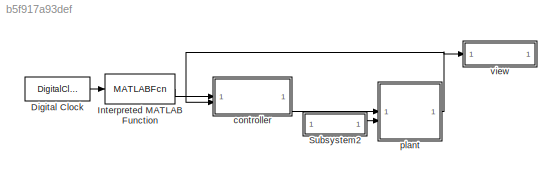
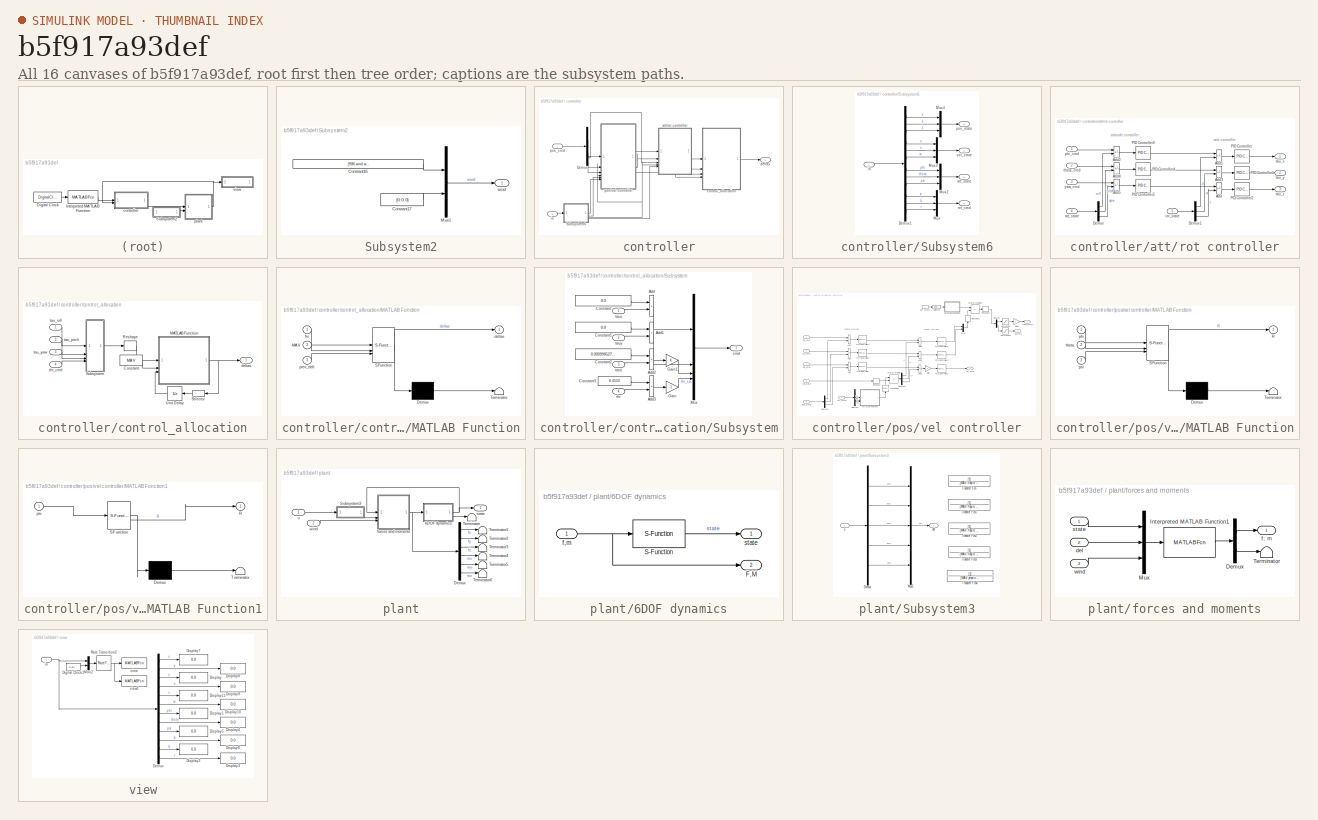
[diagram: thumbnail index - all 16 canvases of the model, root first then tree order]
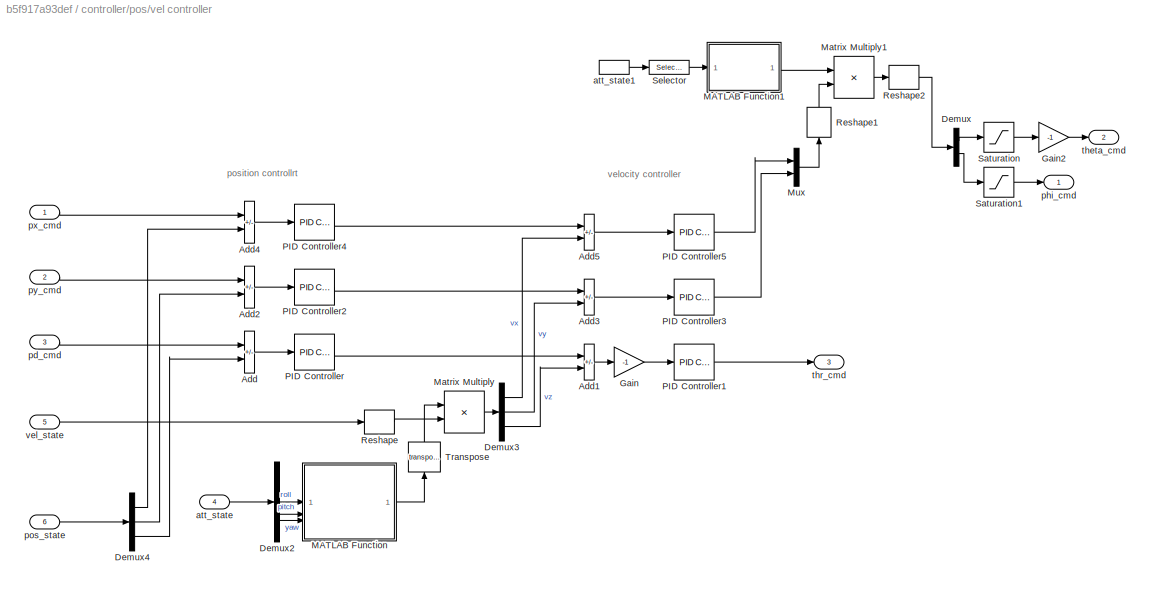
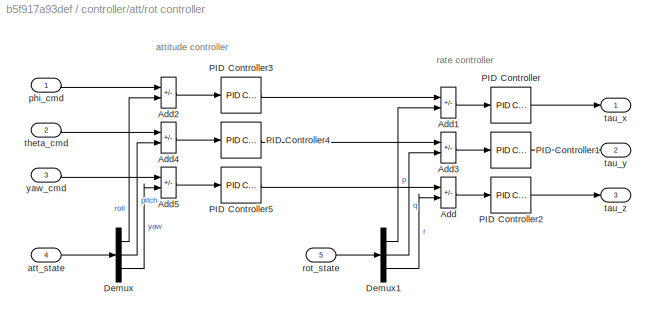
MODEL slx_b5f917a93def
KIND model
CONFIG AbsTol = auto
CONFIG EnableMultiTasking = off
CONFIG FixedStep = 0.001
CONFIG MaxStep = auto
CONFIG MinStep = auto
CONFIG RelTol = 1e-3
CONFIG SampleTimeConstraint = Unconstrained
CONFIG SolverName = FixedStepAuto
CONFIG StartTime = 0.0
CONFIG StopTime = inf
BLOCK [DigitalClock] Digital Clock
  SampleTime = 0.001
BLOCK [MATLABFcn] Interpreted MATLAB Function
  MATLABFcn = position_rhombus(u)
  OutputDimensions = 4
BLOCK [SubSystem] Subsystem2
BLOCK [Constant] Subsystem2/Constant16
  Value = [SIM.wind.wn_s; SIM.wind.we_s; SIM.wind.wd_s]
BLOCK [Constant] Subsystem2/Constant17
  Value = [0; 0; 0]
BLOCK [Mux] Subsystem2/Mux1
  DisplayOption = bar
  Inputs = 2
BLOCK [Outport] Subsystem2/wind
BLOCK [SubSystem] controller
BLOCK [Demux] controller/Demux
BLOCK [SubSystem] controller/Subsystem6
BLOCK [Demux] controller/Subsystem6/Demux1
  Outputs = 12
BLOCK [Mux] controller/Subsystem6/Mux
  DisplayOption = bar
  Inputs = 3
BLOCK [Mux] controller/Subsystem6/Mux2
  DisplayOption = bar
  Inputs = 3
BLOCK [Mux] controller/Subsystem6/Mux3
  DisplayOption = bar
  Inputs = 3
BLOCK [Mux] controller/Subsystem6/Mux4
  DisplayOption = bar
  Inputs = 3
BLOCK [Outport] controller/Subsystem6/att_state
  Port = 3
BLOCK [Inport] controller/Subsystem6/in
BLOCK [Outport] controller/Subsystem6/pos_state
BLOCK [Outport] controller/Subsystem6/rot_cmd
  Port = 4
BLOCK [Outport] controller/Subsystem6/vel_state
  Port = 2
BLOCK [SubSystem] controller/att//rot controller
BLOCK [Sum] controller/att//rot controller/Add
  IconShape = rectangular
  Inputs = +-
BLOCK [Sum] controller/att//rot controller/Add1
  IconShape = rectangular
  Inputs = +-
BLOCK [Sum] controller/att//rot controller/Add2
  IconShape = rectangular
  Inputs = +-
BLOCK [Sum] controller/att//rot controller/Add3
  IconShape = rectangular
  Inputs = +-
BLOCK [Sum] controller/att//rot controller/Add4
  IconShape = rectangular
  Inputs = +-
BLOCK [Sum] controller/att//rot controller/Add5
  IconShape = rectangular
  Inputs = +-
BLOCK [Demux] controller/att//rot controller/Demux
  Outputs = 3
BLOCK [Demux] controller/att//rot controller/Demux1
  Outputs = 3
BLOCK [Reference] controller/att//rot controller/PID Controller  REF=slpidlib/PID Controller
  LibrarySourceBlock = simulink/Continuous/PID Controller
  SourceBlock = slpidlib/PID Controller
  SourceType = PID 1dof
BLOCK [Reference] controller/att//rot controller/PID Controller1  REF=slpidlib/PID Controller
  LibrarySourceBlock = simulink/Continuous/PID Controller
  SourceBlock = slpidlib/PID Controller
  SourceType = PID 1dof
BLOCK [Reference] controller/att//rot controller/PID Controller2  REF=slpidlib/PID Controller
  LibrarySourceBlock = simulink/Continuous/PID Controller
  SourceBlock = slpidlib/PID Controller
  SourceType = PID 1dof
BLOCK [Reference] controller/att//rot controller/PID Controller3  REF=slpidlib/PID Controller
  LibrarySourceBlock = simulink/Continuous/PID Controller
  SourceBlock = slpidlib/PID Controller
  SourceType = PID 1dof
BLOCK [Reference] controller/att//rot controller/PID Controller4  REF=slpidlib/PID Controller
  LibrarySourceBlock = simulink/Continuous/PID Controller
  SourceBlock = slpidlib/PID Controller
  SourceType = PID 1dof
BLOCK [Reference] controller/att//rot controller/PID Controller5  REF=slpidlib/PID Controller
  LibrarySourceBlock = simulink/Continuous/PID Controller
  SourceBlock = slpidlib/PID Controller
  SourceType = PID 1dof
BLOCK [Inport] controller/att//rot controller/att_state
  Port = 4
BLOCK [Inport] controller/att//rot controller/phi_cmd
BLOCK [Inport] controller/att//rot controller/rot_state
  Port = 5
BLOCK [Outport] controller/att//rot controller/tau_x
BLOCK [Outport] controller/att//rot controller/tau_y
  Port = 2
BLOCK [Outport] controller/att//rot controller/tau_z
  Port = 3
BLOCK [Inport] controller/att//rot controller/theta_cmd
  Port = 2
BLOCK [Inport] controller/att//rot controller/yaw_cmd
  Port = 3
BLOCK [SubSystem] controller/control_allocation
BLOCK [Constant] controller/control_allocation/Constant
  OutDataTypeStr = Bus: MAV_Bus
  SampleTime = 0.1
  Value = MAV
BLOCK [SubSystem] controller/control_allocation/MATLAB Function
  ErrorFcn = Stateflow.Translate.translate
  PermitHierarchicalResolution = ExplicitOnly
  SFBlockType = MATLAB Function
  TreatAsAtomicUnit = on
BLOCK [Demux] controller/control_allocation/MATLAB Function/ Demux 
  Outputs = 1
BLOCK [S-Function] controller/control_allocation/MATLAB Function/ SFunction 
  EnableBusSupport = on
  FunctionName = sf_sfun
  PortCounts = [3 2]
  SFcnIsStateOwnerBlock = off
  SFunctionDeploymentMode = off
  Tag = Stateflow S-Function 2
BLOCK [Terminator] controller/control_allocation/MATLAB Function/ Terminator 
BLOCK [Inport] controller/control_allocation/MATLAB Function/MAV
  Port = 2
BLOCK [Outport] controller/control_allocation/MATLAB Function/deltas
BLOCK [Inport] controller/control_allocation/MATLAB Function/fm
BLOCK [Inport] controller/control_allocation/MATLAB Function/prev_delt
  Port = 3
BLOCK [Reshape] controller/control_allocation/Reshape
  OutputDimensionality = Column vector (2-D)
BLOCK [Selector] controller/control_allocation/Selector
  IndexOptions = Index vector (dialog)
  Indices = [5]
  InputPortWidth = 5
  OutputSizes = 1
BLOCK [SubSystem] controller/control_allocation/Subsystem
BLOCK [Sum] controller/control_allocation/Subsystem/Add
  IconShape = rectangular
BLOCK [Sum] controller/control_allocation/Subsystem/Add1
  IconShape = rectangular
BLOCK [Sum] controller/control_allocation/Subsystem/Add2
  IconShape = rectangular
BLOCK [Sum] controller/control_allocation/Subsystem/Add3
  IconShape = rectangular
BLOCK [Constant] controller/control_allocation/Subsystem/Constant
  Value = 0.0
BLOCK [Constant] controller/control_allocation/Subsystem/Constant1
  Value = 0.0
BLOCK [Constant] controller/control_allocation/Subsystem/Constant2
  Value = 0.000998527156824563
BLOCK [Constant] controller/control_allocation/Subsystem/Constant3
  Value = 8.4550
BLOCK [Gain] controller/control_allocation/Subsystem/Gain
  Gain = -1
BLOCK [Gain] controller/control_allocation/Subsystem/Gain1
BLOCK [Mux] controller/control_allocation/Subsystem/Mux
  DisplayOption = bar
BLOCK [Outport] controller/control_allocation/Subsystem/cmd
BLOCK [Inport] controller/control_allocation/Subsystem/taux
BLOCK [Inport] controller/control_allocation/Subsystem/tauy
  Port = 2
BLOCK [Inport] controller/control_allocation/Subsystem/tauz
  Port = 3
BLOCK [Inport] controller/control_allocation/Subsystem/thr
  Port = 4
BLOCK [UnitDelay] controller/control_allocation/Unit Delay
  HasFrameUpgradeWarning = on
  InitialCondition = 0.7245
  SampleTime = -1
BLOCK [Outport] controller/control_allocation/deltas
BLOCK [Inport] controller/control_allocation/tau_pitch
  Port = 2
BLOCK [Inport] controller/control_allocation/tau_roll
BLOCK [Inport] controller/control_allocation/tau_yaw
  Port = 3
BLOCK [Inport] controller/control_allocation/thr_cmd
  Port = 4
BLOCK [Outport] controller/deltas
  NameLocation = left
BLOCK [Inport] controller/in
  Port = 2
BLOCK [SubSystem] controller/pos//vel controller
BLOCK [Sum] controller/pos//vel controller/Add
  IconShape = rectangular
  Inputs = +-
BLOCK [Sum] controller/pos//vel controller/Add1
  IconShape = rectangular
  Inputs = +-
BLOCK [Sum] controller/pos//vel controller/Add2
  IconShape = rectangular
  Inputs = +-
BLOCK [Sum] controller/pos//vel controller/Add3
  IconShape = rectangular
  Inputs = +-
BLOCK [Sum] controller/pos//vel controller/Add4
  IconShape = rectangular
  Inputs = +-
BLOCK [Sum] controller/pos//vel controller/Add5
  IconShape = rectangular
  Inputs = +-
BLOCK [Demux] controller/pos//vel controller/Demux
  Outputs = 2
BLOCK [Demux] controller/pos//vel controller/Demux2
  Outputs = 3
BLOCK [Demux] controller/pos//vel controller/Demux3
  Outputs = 3
BLOCK [Demux] controller/pos//vel controller/Demux4
  Outputs = 3
BLOCK [Gain] controller/pos//vel controller/Gain
  Gain = -1
BLOCK [Gain] controller/pos//vel controller/Gain2
  Gain = -1
BLOCK [SubSystem] controller/pos//vel controller/MATLAB Function
  ErrorFcn = Stateflow.Translate.translate
  PermitHierarchicalResolution = ExplicitOnly
  SFBlockType = MATLAB Function
  TreatAsAtomicUnit = on
BLOCK [Demux] controller/pos//vel controller/MATLAB Function/ Demux 
  Outputs = 1
BLOCK [S-Function] controller/pos//vel controller/MATLAB Function/ SFunction 
  EnableBusSupport = on
  FunctionName = sf_sfun
  PortCounts = [3 2]
  SFcnIsStateOwnerBlock = off
  SFunctionDeploymentMode = off
  Tag = Stateflow S-Function 3
BLOCK [Terminator] controller/pos//vel controller/MATLAB Function/ Terminator 
BLOCK [Outport] controller/pos//vel controller/MATLAB Function/R
BLOCK [Inport] controller/pos//vel controller/MATLAB Function/phi
BLOCK [Inport] controller/pos//vel controller/MATLAB Function/psi
  Port = 3
BLOCK [Inport] controller/pos//vel controller/MATLAB Function/theta
  Port = 2
BLOCK [SubSystem] controller/pos//vel controller/MATLAB Function1
  ErrorFcn = Stateflow.Translate.translate
  PermitHierarchicalResolution = ExplicitOnly
  SFBlockType = MATLAB Function
  TreatAsAtomicUnit = on
BLOCK [Demux] controller/pos//vel controller/MATLAB Function1/ Demux 
  Outputs = 1
BLOCK [S-Function] controller/pos//vel controller/MATLAB Function1/ SFunction 
  EnableBusSupport = on
  FunctionName = sf_sfun
  PortCounts = [1 2]
  SFcnIsStateOwnerBlock = off
  SFunctionDeploymentMode = off
  Tag = Stateflow S-Function 1
BLOCK [Terminator] controller/pos//vel controller/MATLAB Function1/ Terminator 
BLOCK [Outport] controller/pos//vel controller/MATLAB Function1/R
BLOCK [Inport] controller/pos//vel controller/MATLAB Function1/psi
BLOCK [Product] controller/pos//vel controller/Matrix Multiply
  Multiplication = Matrix(*)
BLOCK [Product] controller/pos//vel controller/Matrix Multiply1
  Multiplication = Matrix(*)
BLOCK [Mux] controller/pos//vel controller/Mux
  DisplayOption = bar
  Inputs = 2
BLOCK [Reference] controller/pos//vel controller/PID Controller  REF=slpidlib/PID Controller
  LibrarySourceBlock = simulink/Continuous/PID Controller
  SourceBlock = slpidlib/PID Controller
  SourceType = PID 1dof
BLOCK [Reference] controller/pos//vel controller/PID Controller1  REF=slpidlib/PID Controller
  LibrarySourceBlock = simulink/Continuous/PID Controller
  SourceBlock = slpidlib/PID Controller
  SourceType = PID 1dof
BLOCK [Reference] controller/pos//vel controller/PID Controller2  REF=slpidlib/PID Controller
  LibrarySourceBlock = simulink/Continuous/PID Controller
  SourceBlock = slpidlib/PID Controller
  SourceType = PID 1dof
BLOCK [Reference] controller/pos//vel controller/PID Controller3  REF=slpidlib/PID Controller
  LibrarySourceBlock = simulink/Continuous/PID Controller
  SourceBlock = slpidlib/PID Controller
  SourceType = PID 1dof
BLOCK [Reference] controller/pos//vel controller/PID Controller4  REF=slpidlib/PID Controller
  LibrarySourceBlock = simulink/Continuous/PID Controller
  SourceBlock = slpidlib/PID Controller
  SourceType = PID 1dof
BLOCK [Reference] controller/pos//vel controller/PID Controller5  REF=slpidlib/PID Controller
  LibrarySourceBlock = simulink/Continuous/PID Controller
  SourceBlock = slpidlib/PID Controller
  SourceType = PID 1dof
BLOCK [Reshape] controller/pos//vel controller/Reshape
  OutputDimensionality = Column vector (2-D)
BLOCK [Reshape] controller/pos//vel controller/Reshape1
  NameLocation = right
  OutputDimensionality = Column vector (2-D)
BLOCK [Reshape] controller/pos//vel controller/Reshape2
  OutputDimensionality = Row vector (2-D)
BLOCK [Saturate] controller/pos//vel controller/Saturation
  LowerLimit = -deg2rad(6)
  UpperLimit = deg2rad(6)
BLOCK [Saturate] controller/pos//vel controller/Saturation1
  LowerLimit = -deg2rad(6)
  UpperLimit = deg2rad(6)
BLOCK [Selector] controller/pos//vel controller/Selector
  IndexOptions = Index vector (dialog)
  Indices = [3]
  InputPortWidth = 3
  OutputSizes = 1
BLOCK [Math] controller/pos//vel controller/Transpose
  NameLocation = right
  Operator = transpose
BLOCK [Inport] controller/pos//vel controller/att_state
  Port = 4
BLOCK [InportShadow] controller/pos//vel controller/att_state1
  Port = 4
BLOCK [Inport] controller/pos//vel controller/pd_cmd
  Port = 3
BLOCK [Outport] controller/pos//vel controller/phi_cmd
BLOCK [Inport] controller/pos//vel controller/pos_state
  Port = 6
BLOCK [Inport] controller/pos//vel controller/px_cmd
BLOCK [Inport] controller/pos//vel controller/py_cmd
  Port = 2
BLOCK [Outport] controller/pos//vel controller/theta_cmd
  Port = 2
BLOCK [Outport] controller/pos//vel controller/thr_cmd
  Port = 3
BLOCK [Inport] controller/pos//vel controller/vel_state
  Port = 5
BLOCK [Inport] controller/pos_cmd
BLOCK [SubSystem] plant
BLOCK [SubSystem] plant/6DOF dynamics
BLOCK [Outport] plant/6DOF dynamics/F,M
  Port = 2
BLOCK [S-Function] plant/6DOF dynamics/S-Function
  EnableBusSupport = off
  FunctionName = UAVdynamics
  Parameters = MAV
  SFcnIsStateOwnerBlock = off
  SFunctionDeploymentMode = off
BLOCK [Inport] plant/6DOF dynamics/f,m
BLOCK [Outport] plant/6DOF dynamics/state
BLOCK [Demux] plant/Demux
  Outputs = 6
BLOCK [SubSystem] plant/Subsystem3
BLOCK [Demux] plant/Subsystem3/Demux
  Outputs = 5
BLOCK [Mux] plant/Subsystem3/Mux3
  DisplayOption = bar
  Inputs = 5
BLOCK [TransferFcn] plant/Subsystem3/Transfer Fcn
  Commented = on
  Denominator = [MAV.flap.tc 1]
BLOCK [TransferFcn] plant/Subsystem3/Transfer Fcn1
  Commented = on
  Denominator = [MAV.flap.tc 1]
BLOCK [TransferFcn] plant/Subsystem3/Transfer Fcn2
  Commented = on
  Denominator = [MAV.flap.tc 1]
BLOCK [TransferFcn] plant/Subsystem3/Transfer Fcn3
  Commented = on
  Denominator = [MAV.flap.tc 1]
BLOCK [TransferFcn] plant/Subsystem3/Transfer Fcn4
  Commented = on
  Denominator = [MAV.prop.tc 1]
BLOCK [Outport] plant/Subsystem3/del
BLOCK [Inport] plant/Subsystem3/u
BLOCK [Terminator] plant/Terminator
BLOCK [Terminator] plant/Terminator1
BLOCK [Terminator] plant/Terminator2
BLOCK [Terminator] plant/Terminator3
BLOCK [Terminator] plant/Terminator4
BLOCK [Terminator] plant/Terminator5
BLOCK [Terminator] plant/Terminator6
BLOCK [SubSystem] plant/forces and moments
BLOCK [Demux] plant/forces and moments/Demux
  Outputs = [6,3]
BLOCK [MATLABFcn] plant/forces and moments/Interpreted MATLAB Function1
  MATLABFcn = force_moment(u(1:12), u(13:17), u(18:23), MAV)
  OutputDimensions = 9
BLOCK [Mux] plant/forces and moments/Mux
  DisplayOption = bar
  Inputs = 3
BLOCK [Terminator] plant/forces and moments/Terminator
BLOCK [Inport] plant/forces and moments/del
  Port = 2
BLOCK [Outport] plant/forces and moments/f; m
BLOCK [Inport] plant/forces and moments/state
BLOCK [Inport] plant/forces and moments/wind
  Port = 3
BLOCK [Outport] plant/state
BLOCK [Inport] plant/u
BLOCK [Inport] plant/wind
  Port = 2
BLOCK [SubSystem] view
BLOCK [Demux] view/Demux
  Outputs = 12
BLOCK [DigitalClock] view/Digital Clock1
  SampleTime = 0.005
BLOCK [Display] view/Display
  Decimation = 1
BLOCK [Display] view/Display1
  Decimation = 1
BLOCK [Display] view/Display10
  Decimation = 1
BLOCK [Display] view/Display11
  Decimation = 1
BLOCK [Display] view/Display2
  Decimation = 1
BLOCK [Display] view/Display3
  Decimation = 1
BLOCK [Display] view/Display4
  Decimation = 1
BLOCK [Display] view/Display5
  Decimation = 1
BLOCK [Display] view/Display6
  Decimation = 1
BLOCK [Display] view/Display7
  Decimation = 1
BLOCK [Display] view/Display8
  Decimation = 1
BLOCK [Display] view/Display9
  Decimation = 1
BLOCK [Mux] view/Mux2
  DisplayOption = bar
  Inputs = 2
BLOCK [RateTransition] view/Rate Transition2
  OutPortSampleTime = 0.1
BLOCK [Inport] view/in
BLOCK [MATLABFcn] view/view
  MATLABFcn = drawaircraft(u)
  OutputDimensions = 0
BLOCK [MATLABFcn] view/view1
  MATLABFcn = drawaircraft2(u)
  OutputDimensions = 0
ANNOTATION controller/att//rot controller: attitude controller
ANNOTATION controller/att//rot controller: rate controller
ANNOTATION controller/pos//vel controller: position controllrt
ANNOTATION controller/pos//vel controller: velocity controller
LINE Digital Clock:1 -> Interpreted MATLAB Function:1
LINE Interpreted MATLAB Function:1 -> controller:1
LINE Subsystem2/Constant16:1 -> Subsystem2/Mux1:1
LINE Subsystem2/Constant17:1 -> Subsystem2/Mux1:2
LINE Subsystem2/Mux1:1 -> Subsystem2/wind:1
LINE Subsystem2:1 -> plant:2
LINE controller/Demux:1 -> controller/pos//vel controller:1
LINE controller/Demux:2 -> controller/pos//vel controller:2
LINE controller/Demux:3 -> controller/pos//vel controller:3
LINE controller/Demux:4 -> controller/att//rot controller:3
LINE controller/Subsystem6/Demux1:1 -> controller/Subsystem6/Mux4:1
LINE controller/Subsystem6/Demux1:10 -> controller/Subsystem6/Mux:1
LINE controller/Subsystem6/Demux1:11 -> controller/Subsystem6/Mux:2
LINE controller/Subsystem6/Demux1:12 -> controller/Subsystem6/Mux:3
LINE controller/Subsystem6/Demux1:2 -> controller/Subsystem6/Mux4:2
LINE controller/Subsystem6/Demux1:3 -> controller/Subsystem6/Mux4:3
LINE controller/Subsystem6/Demux1:4 -> controller/Subsystem6/Mux3:1
LINE controller/Subsystem6/Demux1:5 -> controller/Subsystem6/Mux3:2
LINE controller/Subsystem6/Demux1:6 -> controller/Subsystem6/Mux3:3
LINE controller/Subsystem6/Demux1:7 -> controller/Subsystem6/Mux2:1
LINE controller/Subsystem6/Demux1:8 -> controller/Subsystem6/Mux2:2
LINE controller/Subsystem6/Demux1:9 -> controller/Subsystem6/Mux2:3
LINE controller/Subsystem6/Mux2:1 -> controller/Subsystem6/att_state:1
LINE controller/Subsystem6/Mux3:1 -> controller/Subsystem6/vel_state:1
LINE controller/Subsystem6/Mux4:1 -> controller/Subsystem6/pos_state:1
LINE controller/Subsystem6/Mux:1 -> controller/Subsystem6/rot_cmd:1
LINE controller/Subsystem6/in:1 -> controller/Subsystem6/Demux1:1
LINE controller/Subsystem6:1 -> controller/pos//vel controller:6
LINE controller/Subsystem6:2 -> controller/pos//vel controller:5
NET controller/Subsystem6:3 -> controller/att//rot controller:4, controller/pos//vel controller:4
LINE controller/Subsystem6:4 -> controller/att//rot controller:5
LINE controller/att//rot controller/Add1:1 -> controller/att//rot controller/PID Controller:1
LINE controller/att//rot controller/Add2:1 -> controller/att//rot controller/PID Controller3:1
LINE controller/att//rot controller/Add3:1 -> controller/att//rot controller/PID Controller1:1
LINE controller/att//rot controller/Add4:1 -> controller/att//rot controller/PID Controller4:1
LINE controller/att//rot controller/Add5:1 -> controller/att//rot controller/PID Controller5:1
LINE controller/att//rot controller/Add:1 -> controller/att//rot controller/PID Controller2:1
LINE controller/att//rot controller/Demux1:1 -> controller/att//rot controller/Add1:2
LINE controller/att//rot controller/Demux1:2 -> controller/att//rot controller/Add3:2
LINE controller/att//rot controller/Demux1:3 -> controller/att//rot controller/Add:2
LINE controller/att//rot controller/Demux:1 -> controller/att//rot controller/Add2:2
LINE controller/att//rot controller/Demux:2 -> controller/att//rot controller/Add4:2
LINE controller/att//rot controller/Demux:3 -> controller/att//rot controller/Add5:2
LINE controller/att//rot controller/PID Controller1:1 -> controller/att//rot controller/tau_y:1
LINE controller/att//rot controller/PID Controller2:1 -> controller/att//rot controller/tau_z:1
LINE controller/att//rot controller/PID Controller3:1 -> controller/att//rot controller/Add1:1
LINE controller/att//rot controller/PID Controller4:1 -> controller/att//rot controller/Add3:1
LINE controller/att//rot controller/PID Controller5:1 -> controller/att//rot controller/Add:1
LINE controller/att//rot controller/PID Controller:1 -> controller/att//rot controller/tau_x:1
LINE controller/att//rot controller/att_state:1 -> controller/att//rot controller/Demux:1
LINE controller/att//rot controller/phi_cmd:1 -> controller/att//rot controller/Add2:1
LINE controller/att//rot controller/rot_state:1 -> controller/att//rot controller/Demux1:1
LINE controller/att//rot controller/theta_cmd:1 -> controller/att//rot controller/Add4:1
LINE controller/att//rot controller/yaw_cmd:1 -> controller/att//rot controller/Add5:1
LINE controller/att//rot controller:1 -> controller/control_allocation:1
LINE controller/att//rot controller:2 -> controller/control_allocation:2
LINE controller/att//rot controller:3 -> controller/control_allocation:3
LINE controller/control_allocation/Constant:1 -> controller/control_allocation/MATLAB Function:2
NET controller/control_allocation/MATLAB Function:1 -> controller/control_allocation/Selector:1, controller/control_allocation/deltas:1
LINE controller/control_allocation/Reshape:1 -> controller/control_allocation/MATLAB Function:1
LINE controller/control_allocation/Selector:1 -> controller/control_allocation/Unit Delay:1
LINE controller/control_allocation/Subsystem/Add1:1 -> controller/control_allocation/Subsystem/Mux:2
LINE controller/control_allocation/Subsystem/Add2:1 -> controller/control_allocation/Subsystem/Gain1:1
LINE controller/control_allocation/Subsystem/Add3:1 -> controller/control_allocation/Subsystem/Gain:1
LINE controller/control_allocation/Subsystem/Add:1 -> controller/control_allocation/Subsystem/Mux:1
LINE controller/control_allocation/Subsystem/Constant1:1 -> controller/control_allocation/Subsystem/Add1:1
LINE controller/control_allocation/Subsystem/Constant2:1 -> controller/control_allocation/Subsystem/Add2:1
LINE controller/control_allocation/Subsystem/Constant3:1 -> controller/control_allocation/Subsystem/Add3:1
LINE controller/control_allocation/Subsystem/Constant:1 -> controller/control_allocation/Subsystem/Add:1
LINE controller/control_allocation/Subsystem/Gain1:1 -> controller/control_allocation/Subsystem/Mux:3
LINE controller/control_allocation/Subsystem/Gain:1 -> controller/control_allocation/Subsystem/Mux:4
LINE controller/control_allocation/Subsystem/Mux:1 -> controller/control_allocation/Subsystem/cmd:1
LINE controller/control_allocation/Subsystem/taux:1 -> controller/control_allocation/Subsystem/Add:2
LINE controller/control_allocation/Subsystem/tauy:1 -> controller/control_allocation/Subsystem/Add1:2
LINE controller/control_allocation/Subsystem/tauz:1 -> controller/control_allocation/Subsystem/Add2:2
LINE controller/control_allocation/Subsystem/thr:1 -> controller/control_allocation/Subsystem/Add3:2
LINE controller/control_allocation/Subsystem:1 -> controller/control_allocation/Reshape:1
LINE controller/control_allocation/Unit Delay:1 -> controller/control_allocation/MATLAB Function:3
LINE controller/control_allocation/tau_pitch:1 -> controller/control_allocation/Subsystem:2
LINE controller/control_allocation/tau_roll:1 -> controller/control_allocation/Subsystem:1
LINE controller/control_allocation/tau_yaw:1 -> controller/control_allocation/Subsystem:3
LINE controller/control_allocation/thr_cmd:1 -> controller/control_allocation/Subsystem:4
LINE controller/control_allocation:1 -> controller/deltas:1
LINE controller/in:1 -> controller/Subsystem6:1
LINE controller/pos//vel controller/Add1:1 -> controller/pos//vel controller/Gain:1
LINE controller/pos//vel controller/Add2:1 -> controller/pos//vel controller/PID Controller2:1
LINE controller/pos//vel controller/Add3:1 -> controller/pos//vel controller/PID Controller3:1
LINE controller/pos//vel controller/Add4:1 -> controller/pos//vel controller/PID Controller4:1
LINE controller/pos//vel controller/Add5:1 -> controller/pos//vel controller/PID Controller5:1
LINE controller/pos//vel controller/Add:1 -> controller/pos//vel controller/PID Controller:1
LINE controller/pos//vel controller/Demux2:1 -> controller/pos//vel controller/MATLAB Function:1
LINE controller/pos//vel controller/Demux2:2 -> controller/pos//vel controller/MATLAB Function:2
LINE controller/pos//vel controller/Demux2:3 -> controller/pos//vel controller/MATLAB Function:3
LINE controller/pos//vel controller/Demux3:1 -> controller/pos//vel controller/Add5:2
LINE controller/pos//vel controller/Demux3:2 -> controller/pos//vel controller/Add3:2
LINE controller/pos//vel controller/Demux3:3 -> controller/pos//vel controller/Add1:2
LINE controller/pos//vel controller/Demux4:1 -> controller/pos//vel controller/Add4:2
LINE controller/pos//vel controller/Demux4:2 -> controller/pos//vel controller/Add2:2
LINE controller/pos//vel controller/Demux4:3 -> controller/pos//vel controller/Add:2
LINE controller/pos//vel controller/Demux:1 -> controller/pos//vel controller/Saturation:1
LINE controller/pos//vel controller/Demux:2 -> controller/pos//vel controller/Saturation1:1
LINE controller/pos//vel controller/Gain2:1 -> controller/pos//vel controller/theta_cmd:1
LINE controller/pos//vel controller/Gain:1 -> controller/pos//vel controller/PID Controller1:1
LINE controller/pos//vel controller/MATLAB Function1:1 -> controller/pos//vel controller/Matrix Multiply1:1
LINE controller/pos//vel controller/MATLAB Function:1 -> controller/pos//vel controller/Transpose:1
LINE controller/pos//vel controller/Matrix Multiply1:1 -> controller/pos//vel controller/Reshape2:1
LINE controller/pos//vel controller/Matrix Multiply:1 -> controller/pos//vel controller/Demux3:1
LINE controller/pos//vel controller/Mux:1 -> controller/pos//vel controller/Reshape1:1
LINE controller/pos//vel controller/PID Controller1:1 -> controller/pos//vel controller/thr_cmd:1
LINE controller/pos//vel controller/PID Controller2:1 -> controller/pos//vel controller/Add3:1
LINE controller/pos//vel controller/PID Controller3:1 -> controller/pos//vel controller/Mux:2
LINE controller/pos//vel controller/PID Controller4:1 -> controller/pos//vel controller/Add5:1
LINE controller/pos//vel controller/PID Controller5:1 -> controller/pos//vel controller/Mux:1
LINE controller/pos//vel controller/PID Controller:1 -> controller/pos//vel controller/Add1:1
LINE controller/pos//vel controller/Reshape1:1 -> controller/pos//vel controller/Matrix Multiply1:2
LINE controller/pos//vel controller/Reshape2:1 -> controller/pos//vel controller/Demux:1
LINE controller/pos//vel controller/Reshape:1 -> controller/pos//vel controller/Matrix Multiply:2
LINE controller/pos//vel controller/Saturation1:1 -> controller/pos//vel controller/phi_cmd:1
LINE controller/pos//vel controller/Saturation:1 -> controller/pos//vel controller/Gain2:1
LINE controller/pos//vel controller/Selector:1 -> controller/pos//vel controller/MATLAB Function1:1
LINE controller/pos//vel controller/Transpose:1 -> controller/pos//vel controller/Matrix Multiply:1
LINE controller/pos//vel controller/att_state1:1 -> controller/pos//vel controller/Selector:1
LINE controller/pos//vel controller/att_state:1 -> controller/pos//vel controller/Demux2:1
LINE controller/pos//vel controller/pd_cmd:1 -> controller/pos//vel controller/Add:1
LINE controller/pos//vel controller/pos_state:1 -> controller/pos//vel controller/Demux4:1
LINE controller/pos//vel controller/px_cmd:1 -> controller/pos//vel controller/Add4:1
LINE controller/pos//vel controller/py_cmd:1 -> controller/pos//vel controller/Add2:1
LINE controller/pos//vel controller/vel_state:1 -> controller/pos//vel controller/Reshape:1
LINE controller/pos//vel controller:1 -> controller/att//rot controller:1
LINE controller/pos//vel controller:2 -> controller/att//rot controller:2
LINE controller/pos//vel controller:3 -> controller/control_allocation:4
LINE controller/pos_cmd:1 -> controller/Demux:1
LINE controller:1 -> plant:1
LINE plant/6DOF dynamics/S-Function:1 -> plant/6DOF dynamics/state:1
NET plant/6DOF dynamics/f,m:1 -> plant/6DOF dynamics/F,M:1, plant/6DOF dynamics/S-Function:1
NET plant/6DOF dynamics:1 -> plant/forces and moments:1, plant/state:1
LINE plant/6DOF dynamics:2 -> plant/Terminator:1
LINE plant/Demux:1 -> plant/Terminator1:1
LINE plant/Demux:2 -> plant/Terminator2:1
LINE plant/Demux:3 -> plant/Terminator3:1
LINE plant/Demux:4 -> plant/Terminator4:1
LINE plant/Demux:5 -> plant/Terminator5:1
LINE plant/Demux:6 -> plant/Terminator6:1
LINE plant/Subsystem3/Demux:1 -> plant/Subsystem3/Mux3:1
LINE plant/Subsystem3/Demux:2 -> plant/Subsystem3/Mux3:2
LINE plant/Subsystem3/Demux:3 -> plant/Subsystem3/Mux3:3
LINE plant/Subsystem3/Demux:4 -> plant/Subsystem3/Mux3:4
LINE plant/Subsystem3/Demux:5 -> plant/Subsystem3/Mux3:5
LINE plant/Subsystem3/Mux3:1 -> plant/Subsystem3/del:1
LINE plant/Subsystem3/u:1 -> plant/Subsystem3/Demux:1
LINE plant/Subsystem3:1 -> plant/forces and moments:2
LINE plant/forces and moments/Demux:1 -> plant/forces and moments/f; m:1
LINE plant/forces and moments/Demux:2 -> plant/forces and moments/Terminator:1
LINE plant/forces and moments/Interpreted MATLAB Function1:1 -> plant/forces and moments/Demux:1
LINE plant/forces and moments/Mux:1 -> plant/forces and moments/Interpreted MATLAB Function1:1
LINE plant/forces and moments/del:1 -> plant/forces and moments/Mux:2
LINE plant/forces and moments/state:1 -> plant/forces and moments/Mux:1
LINE plant/forces and moments/wind:1 -> plant/forces and moments/Mux:3
NET plant/forces and moments:1 -> plant/6DOF dynamics:1, plant/Demux:1
LINE plant/u:1 -> plant/Subsystem3:1
LINE plant/wind:1 -> plant/forces and moments:3
NET plant:1 -> controller:2, view:1
LINE view/Demux:1 -> view/Display7:1
LINE view/Demux:10 -> view/Display6:1
LINE view/Demux:11 -> view/Display2:1
LINE view/Demux:12 -> view/Display3:1
LINE view/Demux:2 -> view/Display8:1
LINE view/Demux:3 -> view/Display:1
LINE view/Demux:4 -> view/Display9:1
LINE view/Demux:5 -> view/Display11:1
LINE view/Demux:6 -> view/Display10:1
LINE view/Demux:7 -> view/Display1:1
LINE view/Demux:8 -> view/Display4:1
LINE view/Demux:9 -> view/Display5:1
LINE view/Digital Clock1:1 -> view/Mux2:2
LINE view/Mux2:1 -> view/Rate Transition2:1
NET view/Rate Transition2:1 -> view/view1:1, view/view:1
NET view/in:1 -> view/Demux:1, view/Mux2:1
note: NET lines group one-source signal fan-out (src -> all destinations, sorted); 1:1 wires keep LINE
CHART controller/pos//vel controller/MATLAB Function1 states=1 transitions=1
  STATE_LABEL 'eML_blk_kernel()'
  STATE_LABEL 'SCRIPT:\nfunction R = R_psi(psi)\n    R = [cos(psi), sin(psi);\n        -sin(psi), cos(psi)];\nend'
CHART controller/control_allocation/MATLAB Function states=1 transitions=1
  STATE_LABEL 'eML_blk_kernel()'
  STATE_LABEL 'SCRIPT:\nfunction deltas   = control_allocation(fm, MAV, prev_delt)\n    % desired_forces_moments = [Mx; My; Mz; Fz]\n    \n    volt_prev = MAV.prop_data.volt_max * prev_delt;\n    [T1, tau1] = prop_second_order(0, volt_prev, MAV);\n    v_flap = sqrt(T1 / (2 * MAV.rho * MAV.prop_data.prop_area));\n    \n    q = 0.5 * MAV.rho * (v_flap^2); \n    C_lift = q * MAV.flap.s * MAV.flap.cla;\n    \n    K_T = T1 / pr...<+555ch>'
CHART controller/pos//vel controller/MATLAB Function states=1 transitions=1
  STATE_LABEL 'eML_blk_kernel()'
  STATE_LABEL 'SCRIPT:\nfunction R = rotate_inter2body(phi, theta, psi)\n    R_psi = [cos(psi), sin(psi), 0;\n            -sin(psi), cos(psi), 0\n            0, 0, 1];\n    R_theta = [cos(theta), 0, -sin(theta);\n                0 , 1, 0;\n                sin(theta), 0, cos(theta)];\n    R_phi = [1, 0, 0;\n             0, cos(phi), sin(phi);\n             0, -sin(phi), cos(phi)];\n    R = R_phi * R_theta * R_psi;\nend\n'
CHART  states=0 transitions=0
CHART  states=0 transitions=0
CHART  states=0 transitions=0
